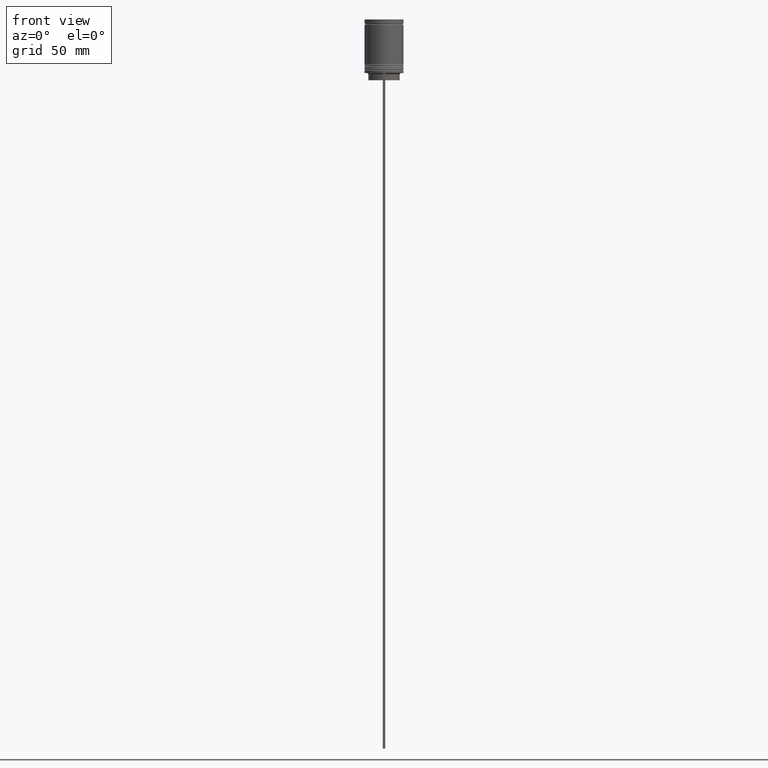
[diagram: clean part render]
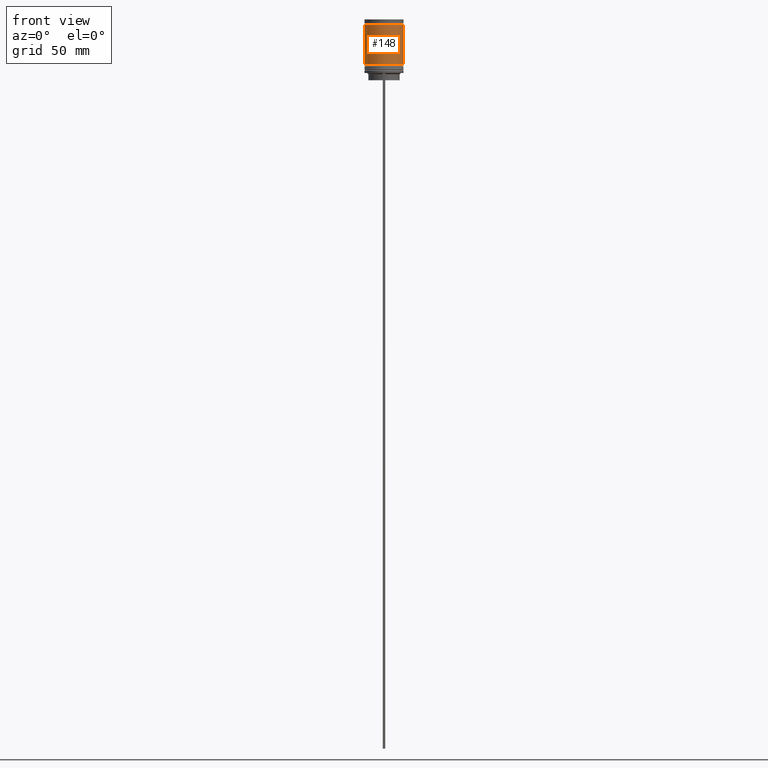
[diagram: same view with one face highlighted and labeled with its STEP entity id]
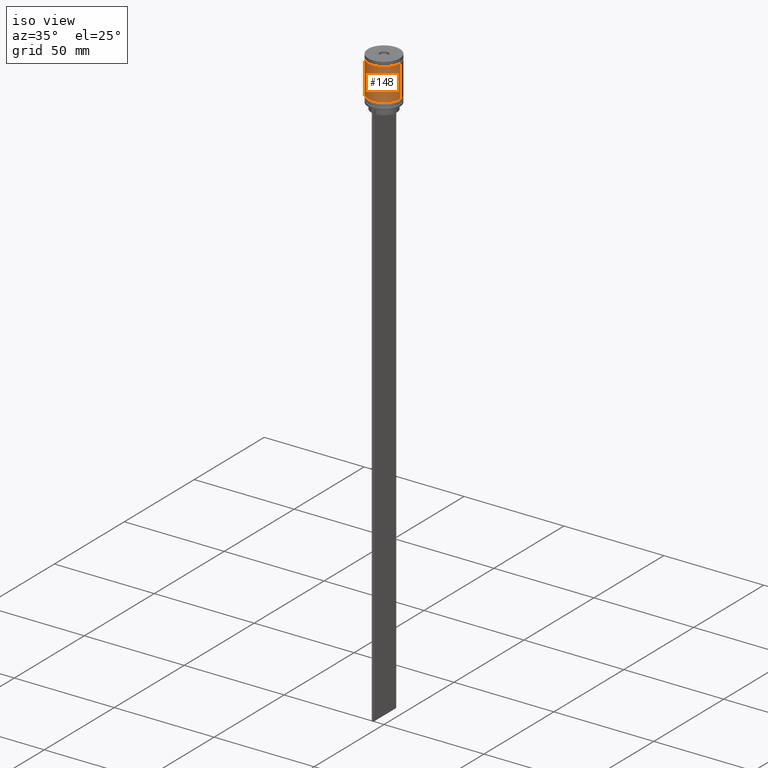
[diagram: same view with one face highlighted and labeled with its STEP entity id]
A machine part, front view. The second image highlights one B-rep face of the part: STEP entity #148.
A second angle (iso view) of the same face is appended — the face is thin or edge-on in the first view.
In plain terms, the highlighted cylindrical surface (edge-blend (fillet) strip) has radius 8 mm, axis along (-0, -0, 1).
Its self-contained STEP definition (entity closure, byte-faithful):
#9 = AXIS2_PLACEMENT_3D ( 'NONE', #1064, #132, #1077 ) ;
#41 = CARTESIAN_POINT ( 'NONE',  ( 8.000000000000001776, 0.000000000000000000, -18.50000000000000000 ) ) ;
#59 = LINE ( 'NONE', #540, #614 ) ;
#104 = VERTEX_POINT ( 'NONE', #1899 ) ;
#107 = CARTESIAN_POINT ( 'NONE',  ( 0.000000000000000000, 0.000000000000000000, -2.199999999999995293 ) ) ;
#132 = DIRECTION ( 'NONE',  ( -0.000000000000000000, -0.000000000000000000, 1.000000000000000000 ) ) ;
#148 = ADVANCED_FACE ( 'NONE', ( #288 ), #747, .T. ) ;
#183 = EDGE_LOOP ( 'NONE', ( #589, #1321, #366, #1654 ) ) ;
#203 = VERTEX_POINT ( 'NONE', #938 ) ;
#288 = FACE_OUTER_BOUND ( 'NONE', #183, .T. ) ;
#366 = ORIENTED_EDGE ( 'NONE', *, *, #1309, .T. ) ;
#540 = CARTESIAN_POINT ( 'NONE',  ( -8.000000000000000000, 9.797174393178825657E-16, 0.000000000000000000 ) ) ;
#570 = DIRECTION ( 'NONE',  ( -0.000000000000000000, -0.000000000000000000, 1.000000000000000000 ) ) ;
#589 = ORIENTED_EDGE ( 'NONE', *, *, #907, .F. ) ;
#591 = DIRECTION ( 'NONE',  ( 1.000000000000000000, 0.000000000000000000, 0.000000000000000000 ) ) ;
#614 = VECTOR ( 'NONE', #1514, 1000.000000000000000 ) ;
#747 = CYLINDRICAL_SURFACE ( 'NONE', #9, 8.000000000000000000 ) ;
#753 = CARTESIAN_POINT ( 'NONE',  ( 7.999999999999996447, 0.000000000000000000, -2.199999999999995293 ) ) ;
#787 = CIRCLE ( 'NONE', #1387, 8.000000000000001776 ) ;
#907 = EDGE_CURVE ( 'NONE', #104, #203, #59, .T. ) ;
#938 = CARTESIAN_POINT ( 'NONE',  ( -7.999999999999996447, 9.797174393178823685E-16, -2.199999999999995293 ) ) ;
#1023 = EDGE_CURVE ( 'NONE', #104, #1710, #787, .T. ) ;
#1064 = CARTESIAN_POINT ( 'NONE',  ( 0.000000000000000000, 0.000000000000000000, 0.000000000000000000 ) ) ;
#1077 = DIRECTION ( 'NONE',  ( 1.000000000000000000, 0.000000000000000000, 0.000000000000000000 ) ) ;
#1109 = VERTEX_POINT ( 'NONE', #753 ) ;
#1258 = VECTOR ( 'NONE', #570, 1000.000000000000000 ) ;
#1309 = EDGE_CURVE ( 'NONE', #1710, #1109, #1535, .T. ) ;
#1321 = ORIENTED_EDGE ( 'NONE', *, *, #1023, .T. ) ;
#1387 = AXIS2_PLACEMENT_3D ( 'NONE', #1913, #1753, #2048 ) ;
#1388 = DIRECTION ( 'NONE',  ( -0.000000000000000000, -0.000000000000000000, 1.000000000000000000 ) ) ;
#1499 = EDGE_CURVE ( 'NONE', #203, #1109, #1702, .T. ) ;
#1514 = DIRECTION ( 'NONE',  ( -0.000000000000000000, -0.000000000000000000, 1.000000000000000000 ) ) ;
#1535 = LINE ( 'NONE', #1987, #1258 ) ;
#1654 = ORIENTED_EDGE ( 'NONE', *, *, #1499, .F. ) ;
#1702 = CIRCLE ( 'NONE', #1968, 7.999999999999996447 ) ;
#1710 = VERTEX_POINT ( 'NONE', #41 ) ;
#1753 = DIRECTION ( 'NONE',  ( -0.000000000000000000, -0.000000000000000000, 1.000000000000000000 ) ) ;
#1899 = CARTESIAN_POINT ( 'NONE',  ( -8.000000000000001776, 9.797174393178827630E-16, -18.50000000000000000 ) ) ;
#1913 = CARTESIAN_POINT ( 'NONE',  ( 0.000000000000000000, 0.000000000000000000, -18.50000000000000000 ) ) ;
#1968 = AXIS2_PLACEMENT_3D ( 'NONE', #107, #1388, #591 ) ;
#1987 = CARTESIAN_POINT ( 'NONE',  ( 8.000000000000000000, 0.000000000000000000, 0.000000000000000000 ) ) ;
#2048 = DIRECTION ( 'NONE',  ( 1.000000000000000000, 0.000000000000000000, 0.000000000000000000 ) ) ;